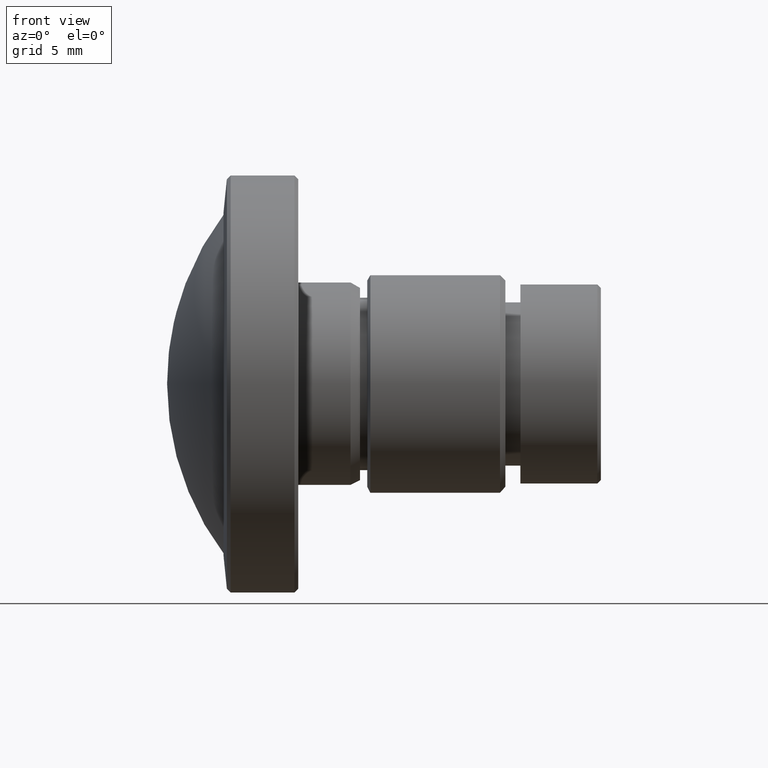
[diagram: clean part render]
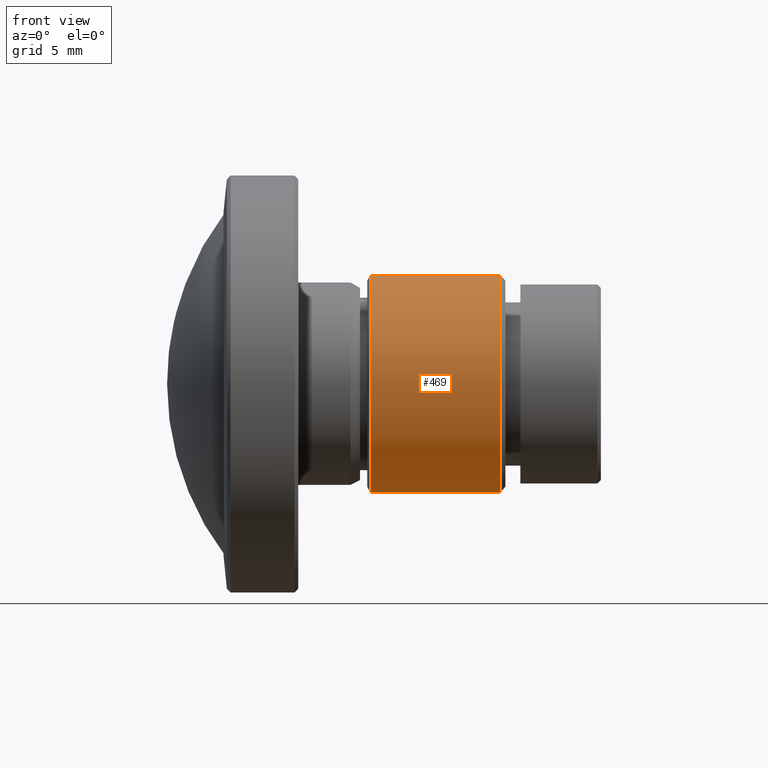
[diagram: same view with one face highlighted and labeled with its STEP entity id]
A machine part, front view. The second image highlights one B-rep face of the part: STEP entity #469.
In plain terms, the highlighted cylindrical surface (bore or boss wall) has radius 6 mm, axis along (-1, 0, 0).
Its self-contained STEP definition (entity closure, byte-faithful):
#64=ORIENTED_EDGE('',*,*,#102,.F.);
#65=ORIENTED_EDGE('',*,*,#101,.T.);
#101=EDGE_CURVE('',#126,#126,#151,.T.);
#102=EDGE_CURVE('',#127,#127,#152,.T.);
#126=VERTEX_POINT('',#683);
#127=VERTEX_POINT('',#686);
#151=CIRCLE('',#513,6.00000000000002);
#152=CIRCLE('',#515,6.00000000000003);
#189=EDGE_LOOP('',(#64));
#190=EDGE_LOOP('',(#65));
#239=FACE_BOUND('',#189,.T.);
#240=FACE_BOUND('',#190,.T.);
#267=CYLINDRICAL_SURFACE('',#514,6.00000000000003);
#469=ADVANCED_FACE('',(#239,#240),#267,.T.);
#513=AXIS2_PLACEMENT_3D('',#682,#593,#594);
#514=AXIS2_PLACEMENT_3D('',#684,#595,#596);
#515=AXIS2_PLACEMENT_3D('',#685,#597,#598);
#593=DIRECTION('',(-1.,0.,0.));
#594=DIRECTION('',(0.,0.,1.));
#595=DIRECTION('',(-1.,0.,0.));
#596=DIRECTION('',(0.,0.,1.));
#597=DIRECTION('',(-1.,0.,0.));
#598=DIRECTION('',(0.,0.,1.));
#682=CARTESIAN_POINT('',(-8.40170368554186,0.,0.));
#683=CARTESIAN_POINT('',(-8.40170368554186,0.,6.00000000000002));
#684=CARTESIAN_POINT('',(-60.,0.,0.));
#685=CARTESIAN_POINT('',(-15.5484986047848,0.,0.));
#686=CARTESIAN_POINT('',(-15.5484986047848,0.,6.00000000000003));